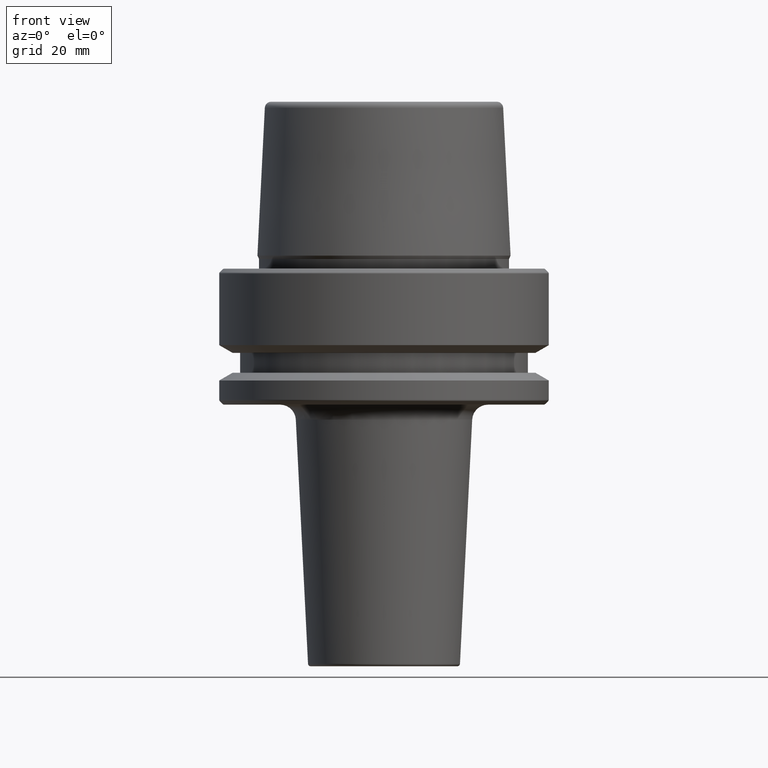
[diagram: clean part render]
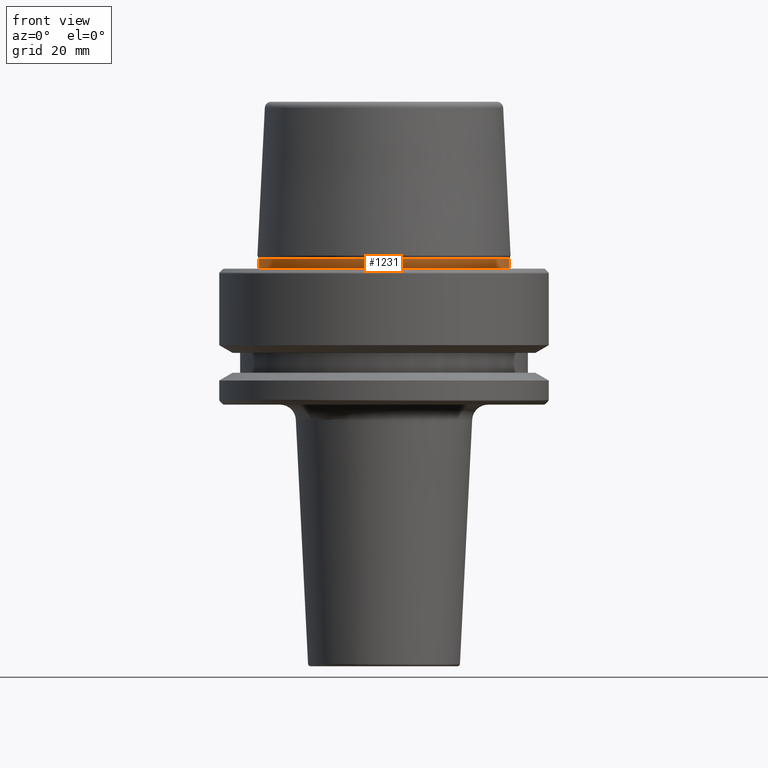
[diagram: same view with one face highlighted and labeled with its STEP entity id]
A machine part, front view. The second image highlights one B-rep face of the part: STEP entity #1231.
In plain terms, the highlighted cylindrical surface (partial cylindrical patch) has radius 23.89 mm, axis along (-0, -0, 1).
Its self-contained STEP definition (entity closure, byte-faithful):
#12 = DIRECTION ( 'NONE',  ( -0.0000000000000000000, -0.0000000000000000000, 1.000000000000000000 ) ) ;
#23 = EDGE_CURVE ( 'NONE', #276, #496, #1068, .T. ) ;
#49 = VECTOR ( 'NONE', #343, 1000.000000000000000 ) ;
#65 = AXIS2_PLACEMENT_3D ( 'NONE', #586, #12, #113 ) ;
#81 = DIRECTION ( 'NONE',  ( -0.0000000000000000000, -0.0000000000000000000, 1.000000000000000000 ) ) ;
#86 = CARTESIAN_POINT ( 'NONE',  ( 0.0000000000000000000, 0.0000000000000000000, 1.845119734979375100 ) ) ;
#113 = DIRECTION ( 'NONE',  ( 1.000000000000000000, 0.0000000000000000000, 0.0000000000000000000 ) ) ;
#132 = FACE_OUTER_BOUND ( 'NONE', #1016, .T. ) ;
#196 = VECTOR ( 'NONE', #81, 1000.000000000000000 ) ;
#274 = AXIS2_PLACEMENT_3D ( 'NONE', #577, #390, #977 ) ;
#276 = VERTEX_POINT ( 'NONE', #1202 ) ;
#343 = DIRECTION ( 'NONE',  ( -0.0000000000000000000, -0.0000000000000000000, 1.000000000000000000 ) ) ;
#390 = DIRECTION ( 'NONE',  ( -0.0000000000000000000, -0.0000000000000000000, 1.000000000000000000 ) ) ;
#396 = DIRECTION ( 'NONE',  ( 1.000000000000000000, 0.0000000000000000000, 0.0000000000000000000 ) ) ;
#464 = ORIENTED_EDGE ( 'NONE', *, *, #1088, .T. ) ;
#471 = DIRECTION ( 'NONE',  ( -0.0000000000000000000, -0.0000000000000000000, 1.000000000000000000 ) ) ;
#481 = LINE ( 'NONE', #1052, #196 ) ;
#496 = VERTEX_POINT ( 'NONE', #646 ) ;
#567 = ORIENTED_EDGE ( 'NONE', *, *, #23, .F. ) ;
#573 = VERTEX_POINT ( 'NONE', #994 ) ;
#577 = CARTESIAN_POINT ( 'NONE',  ( 0.0000000000000000000, 0.0000000000000000000, 0.1312552021302954000 ) ) ;
#580 = CARTESIAN_POINT ( 'NONE',  ( 23.89000000000000400, 0.0000000000000000000, 0.1312552021302954000 ) ) ;
#586 = CARTESIAN_POINT ( 'NONE',  ( 0.0000000000000000000, 0.0000000000000000000, 78.96908074195309300 ) ) ;
#646 = CARTESIAN_POINT ( 'NONE',  ( -23.89000000000000100, 2.944380070784114200E-015, 1.845119734979375100 ) ) ;
#666 = EDGE_CURVE ( 'NONE', #276, #1215, #935, .T. ) ;
#756 = ORIENTED_EDGE ( 'NONE', *, *, #666, .T. ) ;
#821 = AXIS2_PLACEMENT_3D ( 'NONE', #86, #471, #396 ) ;
#825 = CIRCLE ( 'NONE', #821, 23.89000000000000100 ) ;
#834 = CYLINDRICAL_SURFACE ( 'NONE', #65, 23.89000000000000100 ) ;
#935 = CIRCLE ( 'NONE', #274, 23.89000000000000400 ) ;
#951 = EDGE_CURVE ( 'NONE', #496, #573, #825, .T. ) ;
#977 = DIRECTION ( 'NONE',  ( 1.000000000000000000, 0.0000000000000000000, 0.0000000000000000000 ) ) ;
#994 = CARTESIAN_POINT ( 'NONE',  ( 23.89000000000000100, 0.0000000000000000000, 1.845119734979375100 ) ) ;
#1016 = EDGE_LOOP ( 'NONE', ( #567, #756, #464, #1097 ) ) ;
#1052 = CARTESIAN_POINT ( 'NONE',  ( 23.89000000000000100, 0.0000000000000000000, 78.96908074195309300 ) ) ;
#1068 = LINE ( 'NONE', #1120, #49 ) ;
#1088 = EDGE_CURVE ( 'NONE', #1215, #573, #481, .T. ) ;
#1097 = ORIENTED_EDGE ( 'NONE', *, *, #951, .F. ) ;
#1120 = CARTESIAN_POINT ( 'NONE',  ( -23.89000000000000100, 2.925681203163027000E-015, 78.96908074195309300 ) ) ;
#1202 = CARTESIAN_POINT ( 'NONE',  ( -23.89000000000000400, 2.961613815265650600E-015, 0.1312552021302954000 ) ) ;
#1215 = VERTEX_POINT ( 'NONE', #580 ) ;
#1231 = ADVANCED_FACE ( 'NONE', ( #132 ), #834, .T. ) ;